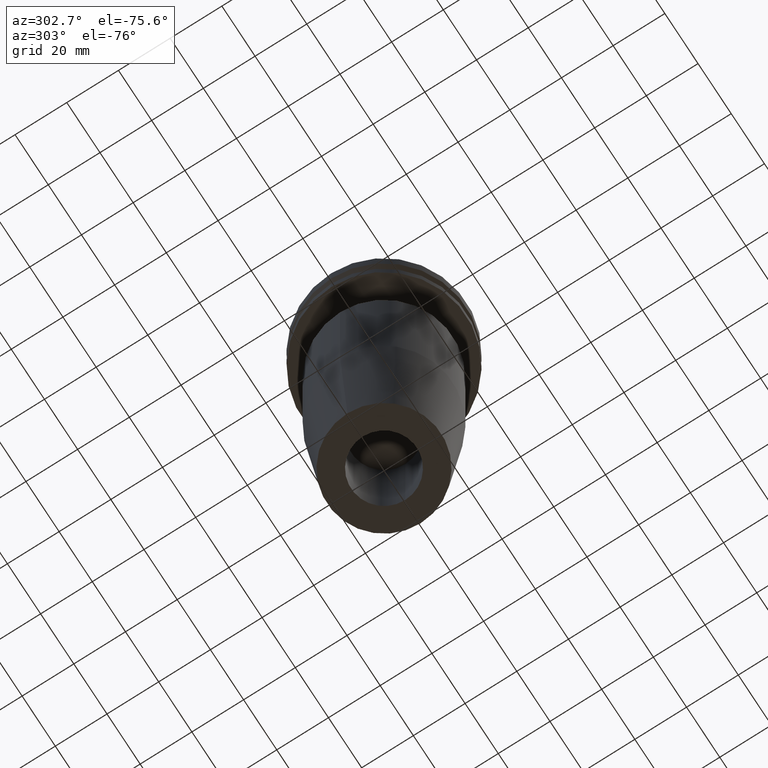
[diagram: clean part render]
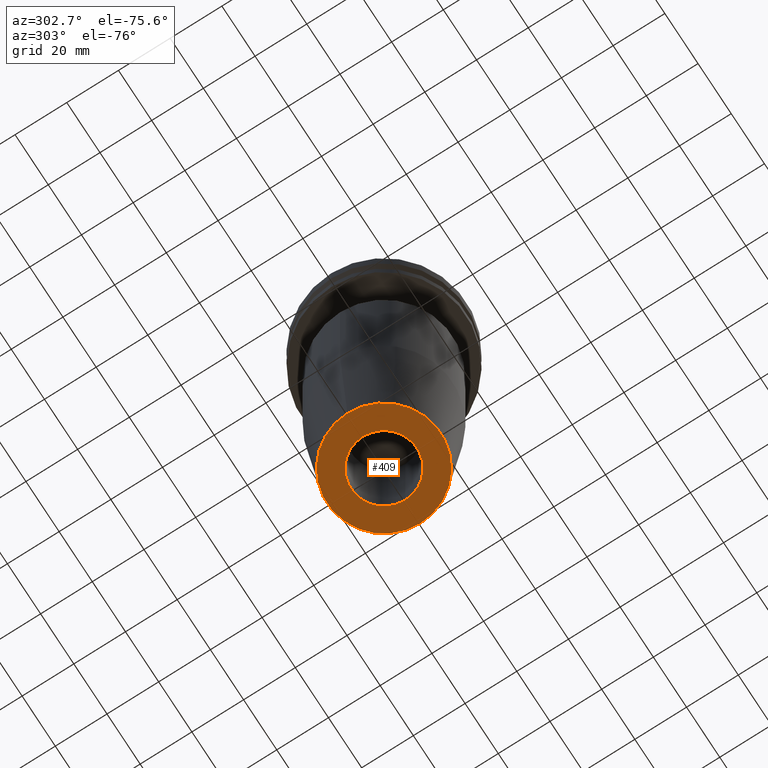
[diagram: same view with one face highlighted and labeled with its STEP entity id]
A machine part, auxiliary view. The second image highlights one B-rep face of the part: STEP entity #409.
In plain terms, the highlighted planar face has unit normal (0, -0, 1).
Its self-contained STEP definition (entity closure, byte-faithful):
#1 = DIRECTION ( 'NONE',  ( 1.000000000000000000, 0.000000000000000000, 0.000000000000000000 ) ) ;
#39 = CARTESIAN_POINT ( 'NONE',  ( 0.000000000000000000, 0.000000000000000000, -152.4000000000000057 ) ) ;
#46 = VERTEX_POINT ( 'NONE', #171 ) ;
#49 = VERTEX_POINT ( 'NONE', #829 ) ;
#64 = CARTESIAN_POINT ( 'NONE',  ( 0.000000000000000000, 0.000000000000000000, -152.4000000000000057 ) ) ;
#76 = CARTESIAN_POINT ( 'NONE',  ( 0.000000000000000000, 0.000000000000000000, -152.4000000000000057 ) ) ;
#128 = DIRECTION ( 'NONE',  ( -0.000000000000000000, -0.000000000000000000, 1.000000000000000000 ) ) ;
#171 = CARTESIAN_POINT ( 'NONE',  ( -22.00000000000000000, 2.969768487932331287E-15, -152.4000000000000057 ) ) ;
#173 = DIRECTION ( 'NONE',  ( -0.000000000000000000, -0.000000000000000000, 1.000000000000000000 ) ) ;
#177 = DIRECTION ( 'NONE',  ( 1.000000000000000000, 0.000000000000000000, 0.000000000000000000 ) ) ;
#180 = CIRCLE ( 'NONE', #701, 22.00000000000000000 ) ;
#215 = CARTESIAN_POINT ( 'NONE',  ( 0.000000000000000000, 22.00000000000000000, -152.4000000000000057 ) ) ;
#218 = DIRECTION ( 'NONE',  ( 1.000000000000000000, 0.000000000000000000, 0.000000000000000000 ) ) ;
#250 = CIRCLE ( 'NONE', #513, 12.70000000000000639 ) ;
#305 = CARTESIAN_POINT ( 'NONE',  ( 12.70000000000000639, 0.000000000000000000, -152.4000000000000057 ) ) ;
#319 = EDGE_CURVE ( 'NONE', #46, #825, #180, .T. ) ;
#361 = AXIS2_PLACEMENT_3D ( 'NONE', #64, #128, #385 ) ;
#385 = DIRECTION ( 'NONE',  ( 1.000000000000000000, 0.000000000000000000, 0.000000000000000000 ) ) ;
#403 = CIRCLE ( 'NONE', #361, 12.70000000000000639 ) ;
#409 = ADVANCED_FACE ( 'NONE', ( #794, #488 ), #812, .F. ) ;
#415 = DIRECTION ( 'NONE',  ( -0.000000000000000000, -0.000000000000000000, 1.000000000000000000 ) ) ;
#455 = CARTESIAN_POINT ( 'NONE',  ( 0.000000000000000000, 0.000000000000000000, -152.4000000000000057 ) ) ;
#484 = CIRCLE ( 'NONE', #744, 22.00000000000000000 ) ;
#488 = FACE_BOUND ( 'NONE', #507, .T. ) ;
#502 = EDGE_CURVE ( 'NONE', #547, #49, #250, .T. ) ;
#507 = EDGE_LOOP ( 'NONE', ( #590, #600 ) ) ;
#513 = AXIS2_PLACEMENT_3D ( 'NONE', #39, #173, #177 ) ;
#541 = DIRECTION ( 'NONE',  ( 1.000000000000000000, 0.000000000000000000, 0.000000000000000000 ) ) ;
#547 = VERTEX_POINT ( 'NONE', #305 ) ;
#568 = AXIS2_PLACEMENT_3D ( 'NONE', #215, #750, #218 ) ;
#590 = ORIENTED_EDGE ( 'NONE', *, *, #502, .T. ) ;
#600 = ORIENTED_EDGE ( 'NONE', *, *, #647, .T. ) ;
#647 = EDGE_CURVE ( 'NONE', #49, #547, #403, .T. ) ;
#701 = AXIS2_PLACEMENT_3D ( 'NONE', #76, #415, #541 ) ;
#708 = ORIENTED_EDGE ( 'NONE', *, *, #727, .F. ) ;
#713 = DIRECTION ( 'NONE',  ( -0.000000000000000000, -0.000000000000000000, 1.000000000000000000 ) ) ;
#727 = EDGE_CURVE ( 'NONE', #825, #46, #484, .T. ) ;
#744 = AXIS2_PLACEMENT_3D ( 'NONE', #455, #713, #1 ) ;
#750 = DIRECTION ( 'NONE',  ( 0.000000000000000000, -0.000000000000000000, 1.000000000000000000 ) ) ;
#786 = ORIENTED_EDGE ( 'NONE', *, *, #319, .F. ) ;
#789 = EDGE_LOOP ( 'NONE', ( #708, #786 ) ) ;
#794 = FACE_OUTER_BOUND ( 'NONE', #789, .T. ) ;
#810 = CARTESIAN_POINT ( 'NONE',  ( 22.00000000000000000, 0.000000000000000000, -152.4000000000000057 ) ) ;
#812 = PLANE ( 'NONE',  #568 ) ;
#825 = VERTEX_POINT ( 'NONE', #810 ) ;
#829 = CARTESIAN_POINT ( 'NONE',  ( -12.70000000000000639, 1.555301434917139221E-15, -152.4000000000000057 ) ) ;